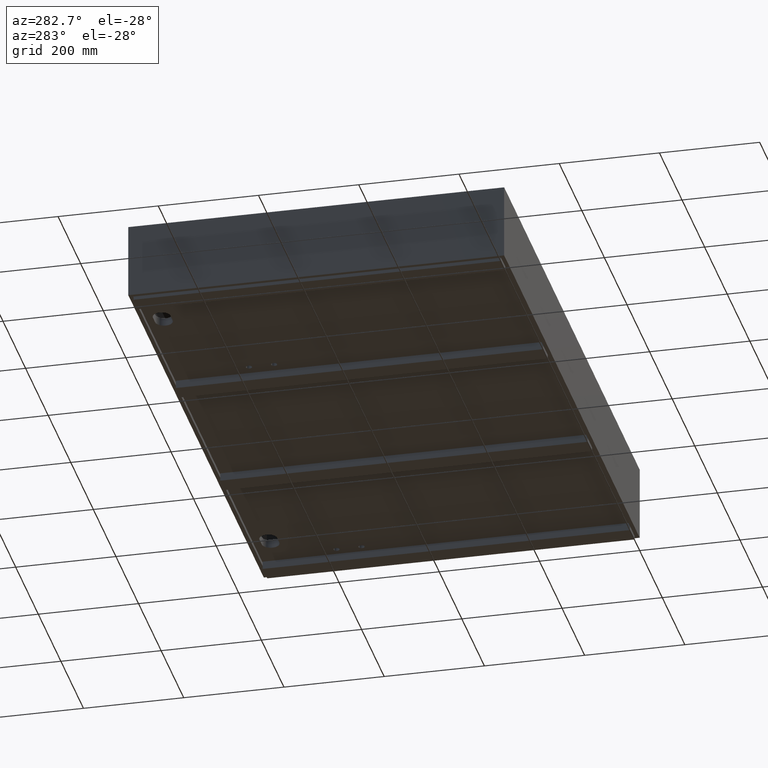
[diagram: clean part render]
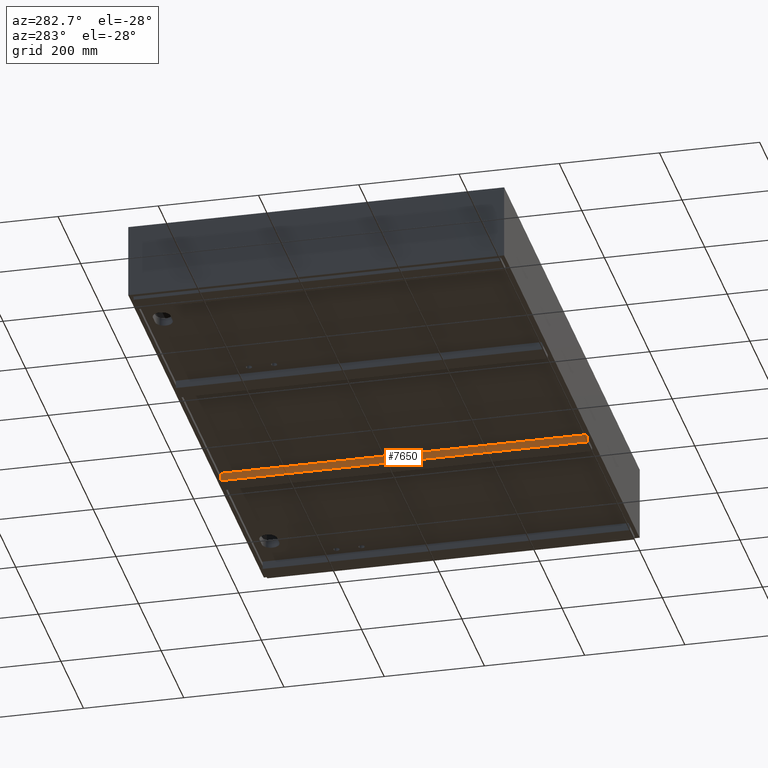
[diagram: same view with one face highlighted and labeled with its STEP entity id]
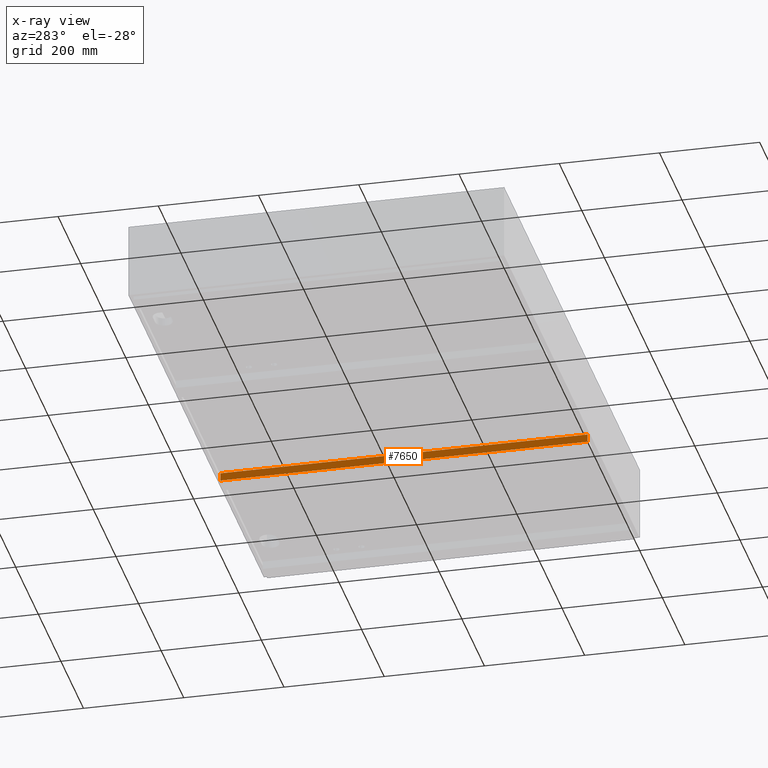
[diagram: x-ray of the same camera — body ghosted, the highlighted face saturated]
A machine part, auxiliary view. The second image highlights one B-rep face of the part: STEP entity #7650.
The next image is the same camera in x-ray: the body ghosted, the highlighted face saturated — about 0% of this face is hidden behind the body in this view.
In plain terms, the highlighted planar face has unit normal (1, -0, -0).
Its self-contained STEP definition (entity closure, byte-faithful):
#449 = VECTOR ( 'NONE', #8560, 1000.000000000000000 ) ;
#456 = VERTEX_POINT ( 'NONE', #5087 ) ;
#526 = DIRECTION ( 'NONE',  ( 1.000000000000000000, -1.514629162466674743E-16, -1.423362852083534639E-16 ) ) ;
#527 = CARTESIAN_POINT ( 'NONE',  ( 776.8400000000000318, 8.499999999999952038, -157.0000000000003695 ) ) ;
#1940 = FACE_OUTER_BOUND ( 'NONE', #7085, .T. ) ;
#2804 = CARTESIAN_POINT ( 'NONE',  ( 776.8400000000001455, 741.4999000000001388, -157.0000000000003695 ) ) ;
#3417 = VECTOR ( 'NONE', #6268, 1000.000000000000000 ) ;
#3726 = VECTOR ( 'NONE', #5536, 1000.000000000000000 ) ;
#4203 = ORIENTED_EDGE ( 'NONE', *, *, #4276, .T. ) ;
#4204 = ORIENTED_EDGE ( 'NONE', *, *, #16128, .F. ) ;
#4276 = EDGE_CURVE ( 'NONE', #16541, #12348, #13419, .T. ) ;
#4344 = LINE ( 'NONE', #10090, #16195 ) ;
#5087 = CARTESIAN_POINT ( 'NONE',  ( 776.8400000000001455, 741.4999000000001388, -157.0000000000003695 ) ) ;
#5430 = EDGE_CURVE ( 'NONE', #16541, #456, #15688, .T. ) ;
#5536 = DIRECTION ( 'NONE',  ( 1.423362852083534639E-16, 0.0000000000000000000, 1.000000000000000000 ) ) ;
#5743 = ORIENTED_EDGE ( 'NONE', *, *, #10408, .T. ) ;
#6267 = DIRECTION ( 'NONE',  ( 1.514629162466674743E-16, 1.000000000000000000, 0.0000000000000000000 ) ) ;
#6268 = DIRECTION ( 'NONE',  ( 1.423362852083534639E-16, 0.0000000000000000000, 1.000000000000000000 ) ) ;
#7085 = EDGE_LOOP ( 'NONE', ( #5743, #4204, #13291, #4203 ) ) ;
#7650 = ADVANCED_FACE ( 'NONE', ( #1940 ), #7685, .F. ) ;
#7685 = PLANE ( 'NONE',  #14634 ) ;
#8560 = DIRECTION ( 'NONE',  ( 1.514629162466674743E-16, 1.000000000000000000, 0.0000000000000000000 ) ) ;
#8776 = CARTESIAN_POINT ( 'NONE',  ( 776.8400000000000318, 8.499999999999952038, -141.0000000000003411 ) ) ;
#10090 = CARTESIAN_POINT ( 'NONE',  ( 776.8400000000001455, 741.4999000000001388, -141.0000000000003411 ) ) ;
#10408 = EDGE_CURVE ( 'NONE', #12348, #10577, #4344, .T. ) ;
#10577 = VERTEX_POINT ( 'NONE', #13469 ) ;
#12348 = VERTEX_POINT ( 'NONE', #8776 ) ;
#12454 = LINE ( 'NONE', #18167, #3726 ) ;
#13291 = ORIENTED_EDGE ( 'NONE', *, *, #5430, .F. ) ;
#13418 = CARTESIAN_POINT ( 'NONE',  ( 776.8400000000001455, 741.4999000000001388, -157.0000000000003695 ) ) ;
#13419 = LINE ( 'NONE', #527, #3417 ) ;
#13469 = CARTESIAN_POINT ( 'NONE',  ( 776.8400000000001455, 741.4999000000001388, -141.0000000000003411 ) ) ;
#14167 = CARTESIAN_POINT ( 'NONE',  ( 776.8400000000000318, 8.499999999999952038, -157.0000000000003695 ) ) ;
#14634 = AXIS2_PLACEMENT_3D ( 'NONE', #13418, #526, #6267 ) ;
#15688 = LINE ( 'NONE', #2804, #449 ) ;
#15818 = DIRECTION ( 'NONE',  ( 1.514629162466674743E-16, 1.000000000000000000, 0.0000000000000000000 ) ) ;
#16128 = EDGE_CURVE ( 'NONE', #456, #10577, #12454, .T. ) ;
#16195 = VECTOR ( 'NONE', #15818, 1000.000000000000000 ) ;
#16541 = VERTEX_POINT ( 'NONE', #14167 ) ;
#18167 = CARTESIAN_POINT ( 'NONE',  ( 776.8400000000001455, 741.4999000000001388, -157.0000000000003695 ) ) ;